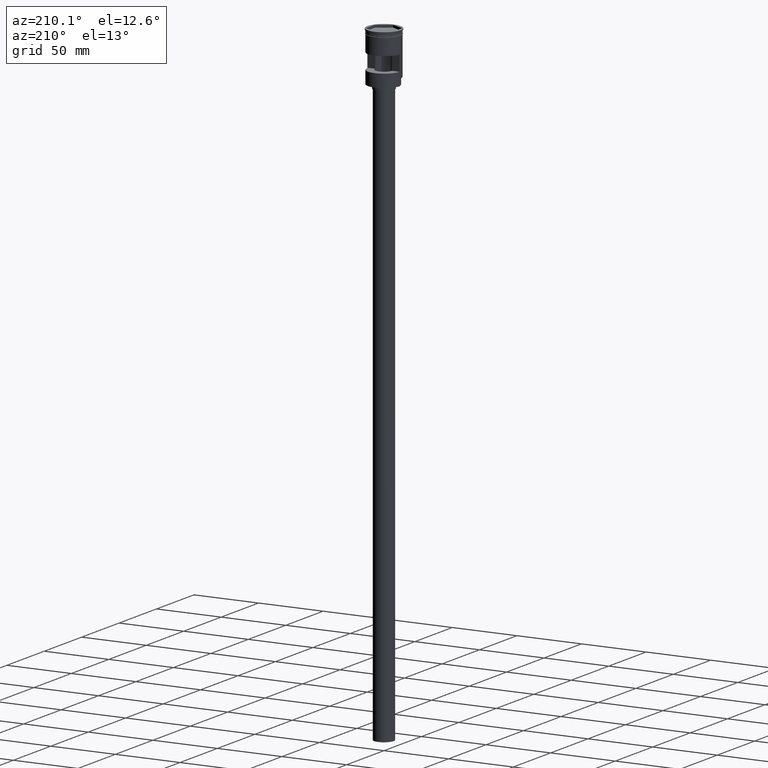
[diagram: clean part render]
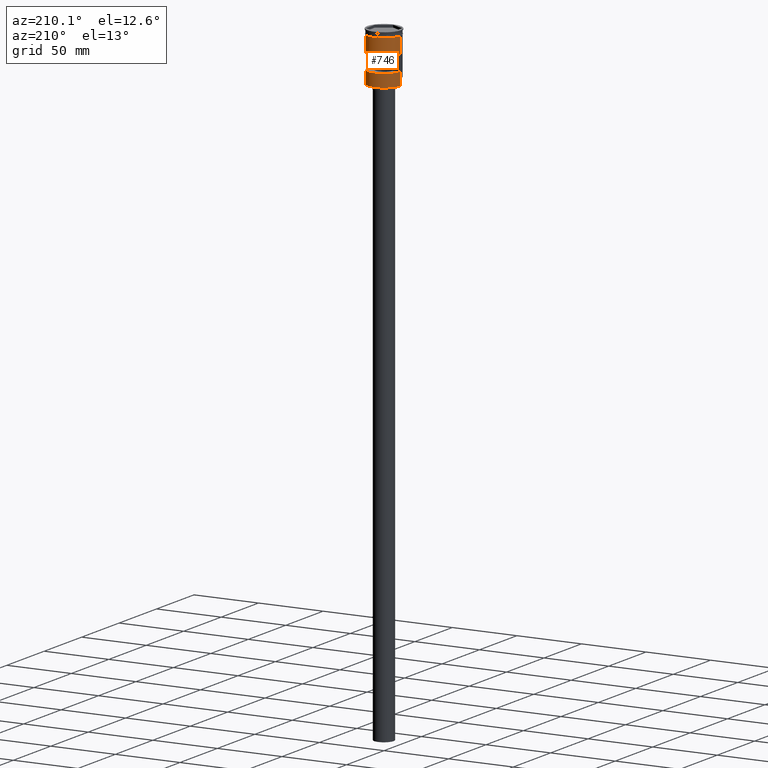
[diagram: same view with one face highlighted and labeled with its STEP entity id]
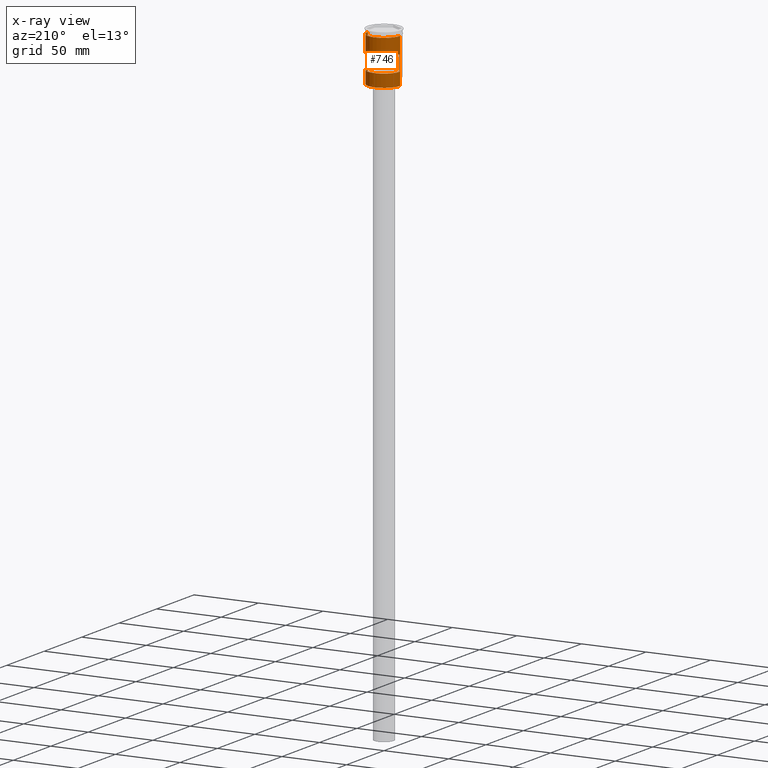
[diagram: x-ray of the same camera — body ghosted, the highlighted face saturated]
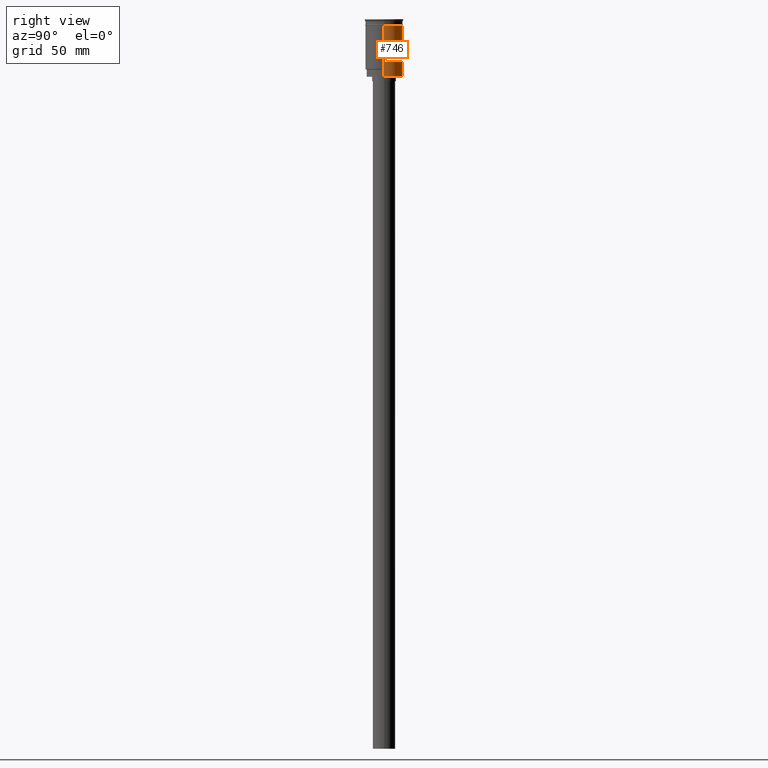
[diagram: same view with one face highlighted and labeled with its STEP entity id]
A machine part, auxiliary view. The second image highlights one B-rep face of the part: STEP entity #746.
The next image is the same camera in x-ray: the body ghosted, the highlighted face saturated — about 0% of this face is hidden behind the body in this view.
A second angle (right view) of the same face is appended — the face is thin or edge-on in the first view.
In plain terms, the highlighted cylindrical surface (edge-blend (fillet) strip) has radius 12.5 mm, axis along (-0, -0, 1).
Its self-contained STEP definition (entity closure, byte-faithful):
#10 = CARTESIAN_POINT ( 'NONE',  ( 12.49999999999999289, 1.530808498934190732E-15, -38.50000000000000000 ) ) ;
#33 = ORIENTED_EDGE ( 'NONE', *, *, #1207, .F. ) ;
#90 = CARTESIAN_POINT ( 'NONE',  ( -12.49999999999999645, 1.530808498934191127E-15, 0.000000000000000000 ) ) ;
#92 = LINE ( 'NONE', #193, #837 ) ;
#93 = VERTEX_POINT ( 'NONE', #352 ) ;
#139 = CIRCLE ( 'NONE', #1028, 12.49999999999999645 ) ;
#146 = LINE ( 'NONE', #1261, #1159 ) ;
#147 = DIRECTION ( 'NONE',  ( 1.000000000000000000, 0.000000000000000000, 0.000000000000000000 ) ) ;
#152 = DIRECTION ( 'NONE',  ( 0.000000000000000000, 0.000000000000000000, 1.000000000000000000 ) ) ;
#168 = CARTESIAN_POINT ( 'NONE',  ( 0.000000000000000000, 0.000000000000000000, -28.49999999999999645 ) ) ;
#170 = EDGE_CURVE ( 'NONE', #936, #512, #1086, .T. ) ;
#190 = EDGE_CURVE ( 'NONE', #1591, #936, #146, .T. ) ;
#193 = CARTESIAN_POINT ( 'NONE',  ( -12.49999999999999289, 0.000000000000000000, -38.50000000000000000 ) ) ;
#199 = EDGE_LOOP ( 'NONE', ( #1482, #665, #491, #623 ) ) ;
#201 = EDGE_CURVE ( 'NONE', #244, #1446, #139, .T. ) ;
#209 = CARTESIAN_POINT ( 'NONE',  ( 12.49999999999999645, 1.530808498934191127E-15, -33.30000000000005400 ) ) ;
#244 = VERTEX_POINT ( 'NONE', #414 ) ;
#272 = CYLINDRICAL_SURFACE ( 'NONE', #675, 12.49999999999999645 ) ;
#274 = EDGE_LOOP ( 'NONE', ( #1286, #466, #1351, #351, #33, #870 ) ) ;
#277 = CARTESIAN_POINT ( 'NONE',  ( 0.000000000000000000, 0.000000000000000000, -16.50000000000000000 ) ) ;
#278 = CARTESIAN_POINT ( 'NONE',  ( 0.000000000000000000, 0.000000000000000000, -3.999999999999996447 ) ) ;
#348 = AXIS2_PLACEMENT_3D ( 'NONE', #168, #672, #1162 ) ;
#351 = ORIENTED_EDGE ( 'NONE', *, *, #845, .F. ) ;
#352 = CARTESIAN_POINT ( 'NONE',  ( -12.49999999999999289, 0.000000000000000000, -33.30000000000005400 ) ) ;
#380 = CARTESIAN_POINT ( 'NONE',  ( -12.50000000000000000, 1.530808498934191521E-15, -3.999999999999996447 ) ) ;
#397 = DIRECTION ( 'NONE',  ( 1.000000000000000000, 0.000000000000000000, 0.000000000000000000 ) ) ;
#409 = DIRECTION ( 'NONE',  ( -0.000000000000000000, 0.000000000000000000, -1.000000000000000000 ) ) ;
#414 = CARTESIAN_POINT ( 'NONE',  ( 12.49999999999999289, 1.530808498934190732E-15, -38.30000000000007532 ) ) ;
#433 = LINE ( 'NONE', #1047, #802 ) ;
#443 = VECTOR ( 'NONE', #1430, 1000.000000000000000 ) ;
#448 = VECTOR ( 'NONE', #744, 1000.000000000000000 ) ;
#466 = ORIENTED_EDGE ( 'NONE', *, *, #977, .T. ) ;
#482 = LINE ( 'NONE', #10, #448 ) ;
#486 = CARTESIAN_POINT ( 'NONE',  ( 12.48559169603106689, 0.6000000000000003109, -16.50000000000000000 ) ) ;
#491 = ORIENTED_EDGE ( 'NONE', *, *, #190, .F. ) ;
#512 = VERTEX_POINT ( 'NONE', #486 ) ;
#514 = DIRECTION ( 'NONE',  ( -0.000000000000000000, -0.000000000000000000, 1.000000000000000000 ) ) ;
#623 = ORIENTED_EDGE ( 'NONE', *, *, #865, .F. ) ;
#638 = DIRECTION ( 'NONE',  ( 1.000000000000000000, 0.000000000000000000, 0.000000000000000000 ) ) ;
#639 = CARTESIAN_POINT ( 'NONE',  ( 12.48559169603106689, 0.6000000000000003109, -28.49999999999999645 ) ) ;
#644 = CARTESIAN_POINT ( 'NONE',  ( 0.000000000000000000, 0.000000000000000000, 0.000000000000000000 ) ) ;
#657 = DIRECTION ( 'NONE',  ( -1.000000000000000000, 0.000000000000000000, 0.000000000000000000 ) ) ;
#665 = ORIENTED_EDGE ( 'NONE', *, *, #170, .F. ) ;
#672 = DIRECTION ( 'NONE',  ( 0.000000000000000000, 0.000000000000000000, 1.000000000000000000 ) ) ;
#675 = AXIS2_PLACEMENT_3D ( 'NONE', #644, #514, #147 ) ;
#696 = LINE ( 'NONE', #90, #1352 ) ;
#708 = DIRECTION ( 'NONE',  ( -0.000000000000000000, -0.000000000000000000, 1.000000000000000000 ) ) ;
#725 = EDGE_CURVE ( 'NONE', #1144, #1198, #1090, .T. ) ;
#744 = DIRECTION ( 'NONE',  ( -0.000000000000000000, -0.000000000000000000, 1.000000000000000000 ) ) ;
#746 = ADVANCED_FACE ( 'NONE', ( #1243, #1122 ), #272, .T. ) ;
#802 = VECTOR ( 'NONE', #930, 1000.000000000000000 ) ;
#837 = VECTOR ( 'NONE', #1437, 1000.000000000000000 ) ;
#845 = EDGE_CURVE ( 'NONE', #945, #1144, #433, .T. ) ;
#865 = EDGE_CURVE ( 'NONE', #1361, #1591, #1224, .T. ) ;
#870 = ORIENTED_EDGE ( 'NONE', *, *, #201, .T. ) ;
#873 = DIRECTION ( 'NONE',  ( -0.000000000000000000, -0.000000000000000000, 1.000000000000000000 ) ) ;
#891 = CARTESIAN_POINT ( 'NONE',  ( -12.49999999999999289, 0.000000000000000000, -38.30000000000007532 ) ) ;
#930 = DIRECTION ( 'NONE',  ( -0.000000000000000000, -0.000000000000000000, 1.000000000000000000 ) ) ;
#933 = CARTESIAN_POINT ( 'NONE',  ( 12.49999999999999822, 0.000000000000000000, -3.999999999999996447 ) ) ;
#936 = VERTEX_POINT ( 'NONE', #1521 ) ;
#945 = VERTEX_POINT ( 'NONE', #209 ) ;
#977 = EDGE_CURVE ( 'NONE', #93, #1198, #696, .T. ) ;
#1010 = AXIS2_PLACEMENT_3D ( 'NONE', #277, #409, #397 ) ;
#1018 = DIRECTION ( 'NONE',  ( -0.000000000000000000, -0.000000000000000000, 1.000000000000000000 ) ) ;
#1028 = AXIS2_PLACEMENT_3D ( 'NONE', #1251, #152, #657 ) ;
#1047 = CARTESIAN_POINT ( 'NONE',  ( 12.49999999999999645, 0.000000000000000000, 0.000000000000000000 ) ) ;
#1086 = CIRCLE ( 'NONE', #1010, 12.49999999999999645 ) ;
#1090 = CIRCLE ( 'NONE', #1269, 12.49999999999999822 ) ;
#1107 = EDGE_CURVE ( 'NONE', #1446, #93, #92, .T. ) ;
#1122 = FACE_OUTER_BOUND ( 'NONE', #274, .T. ) ;
#1144 = VERTEX_POINT ( 'NONE', #933 ) ;
#1159 = VECTOR ( 'NONE', #1018, 1000.000000000000000 ) ;
#1162 = DIRECTION ( 'NONE',  ( -1.000000000000000000, 0.000000000000000000, 0.000000000000000000 ) ) ;
#1166 = CARTESIAN_POINT ( 'NONE',  ( -12.48559169603106689, 0.6000000000000003109, -28.49999999999999645 ) ) ;
#1183 = CARTESIAN_POINT ( 'NONE',  ( 12.48559169603106689, 0.6000000000000003109, 0.000000000000000000 ) ) ;
#1198 = VERTEX_POINT ( 'NONE', #380 ) ;
#1207 = EDGE_CURVE ( 'NONE', #244, #945, #482, .T. ) ;
#1224 = CIRCLE ( 'NONE', #348, 12.49999999999999645 ) ;
#1243 = FACE_BOUND ( 'NONE', #199, .T. ) ;
#1251 = CARTESIAN_POINT ( 'NONE',  ( 0.000000000000000000, 0.000000000000000000, -38.30000000000007532 ) ) ;
#1261 = CARTESIAN_POINT ( 'NONE',  ( -12.48559169603106689, 0.6000000000000003109, 0.000000000000000000 ) ) ;
#1269 = AXIS2_PLACEMENT_3D ( 'NONE', #278, #873, #638 ) ;
#1286 = ORIENTED_EDGE ( 'NONE', *, *, #1107, .T. ) ;
#1299 = LINE ( 'NONE', #1183, #443 ) ;
#1351 = ORIENTED_EDGE ( 'NONE', *, *, #725, .F. ) ;
#1352 = VECTOR ( 'NONE', #708, 1000.000000000000000 ) ;
#1361 = VERTEX_POINT ( 'NONE', #639 ) ;
#1430 = DIRECTION ( 'NONE',  ( 0.000000000000000000, 0.000000000000000000, -1.000000000000000000 ) ) ;
#1437 = DIRECTION ( 'NONE',  ( -0.000000000000000000, -0.000000000000000000, 1.000000000000000000 ) ) ;
#1446 = VERTEX_POINT ( 'NONE', #891 ) ;
#1482 = ORIENTED_EDGE ( 'NONE', *, *, #1554, .F. ) ;
#1521 = CARTESIAN_POINT ( 'NONE',  ( -12.48559169603106689, 0.6000000000000003109, -16.50000000000000000 ) ) ;
#1554 = EDGE_CURVE ( 'NONE', #512, #1361, #1299, .T. ) ;
#1591 = VERTEX_POINT ( 'NONE', #1166 ) ;